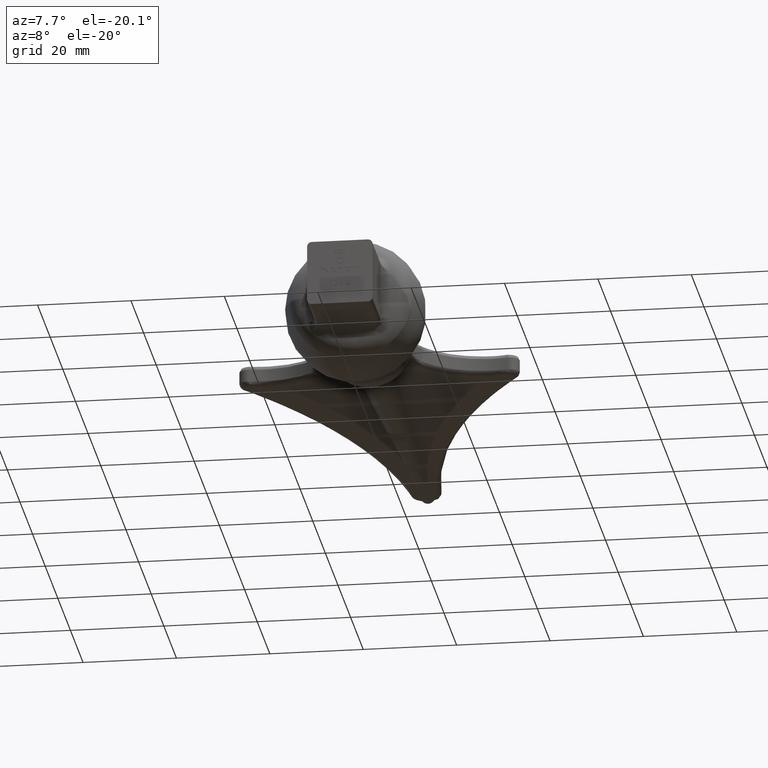
[diagram: clean part render]
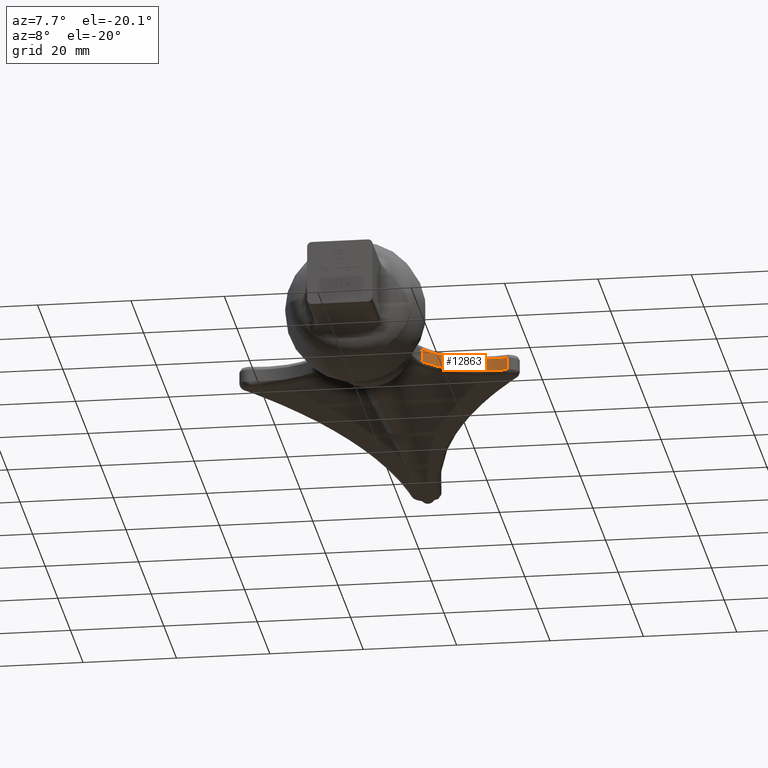
[diagram: same view with one face highlighted and labeled with its STEP entity id]
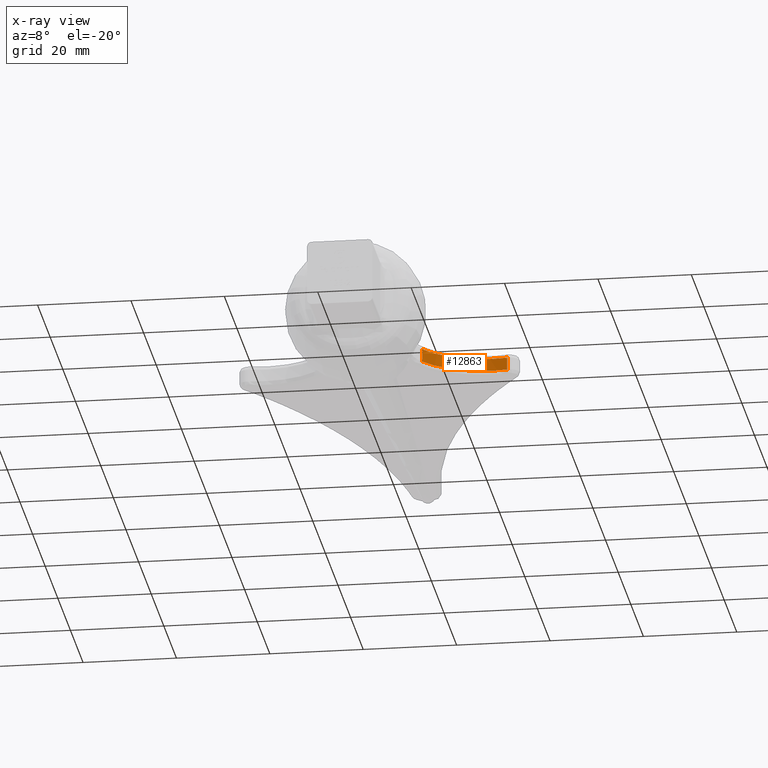
[diagram: x-ray of the same camera — body ghosted, the highlighted face saturated]
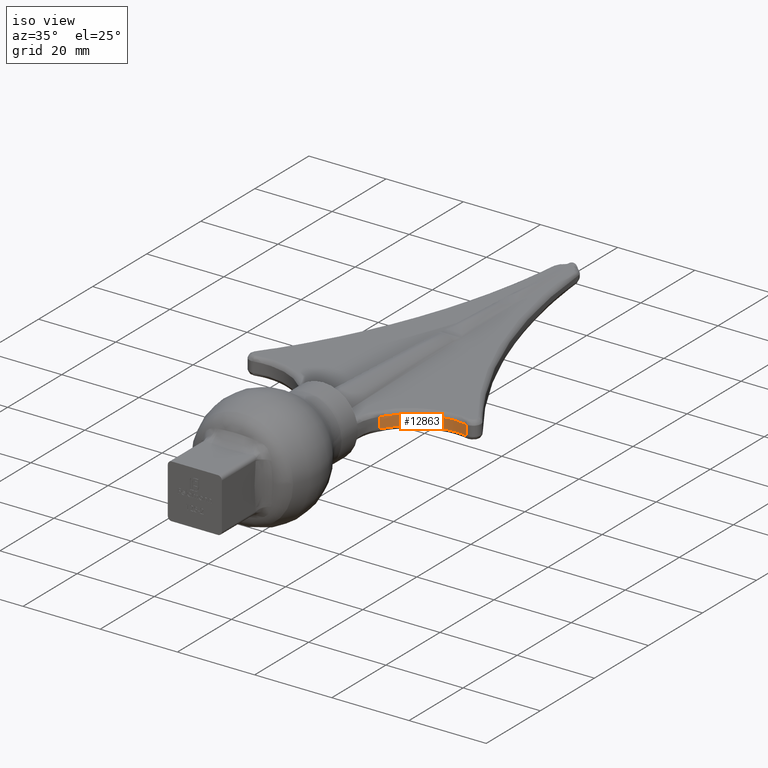
[diagram: same view with one face highlighted and labeled with its STEP entity id]
A machine part, auxiliary view. The second image highlights one B-rep face of the part: STEP entity #12863.
The next image is the same camera in x-ray: the body ghosted, the highlighted face saturated — about 0% of this face is hidden behind the body in this view.
A second angle (iso view) of the same face is appended — the face is thin or edge-on in the first view.
In plain terms, the highlighted cylindrical surface (partial cylindrical patch) has radius 16.3636 mm, axis along (0, 0, -1).
Its self-contained STEP definition (entity closure, byte-faithful):
#470 = ORIENTED_EDGE ( 'NONE', *, *, #9559, .T. ) ;
#489 = CARTESIAN_POINT ( 'NONE',  ( 10.46471792451112925, 8.636472734504080151, -0.2331750002486945306 ) ) ;
#614 = CARTESIAN_POINT ( 'NONE',  ( 10.45483533515793617, 8.620631210099075403, -0.4710905540037743644 ) ) ;
#692 =( BOUNDED_CURVE ( )  B_SPLINE_CURVE ( 3, ( #4893, #12305, #5926, #5876 ),
 .UNSPECIFIED., .F., .T. ) 
 B_SPLINE_CURVE_WITH_KNOTS ( ( 4, 4 ),
 ( 2.113038688172128587, 3.340929958572117275 ),
 .UNSPECIFIED. ) 
 CURVE ( )  GEOMETRIC_REPRESENTATION_ITEM ( )  RATIONAL_B_SPLINE_CURVE ( ( 1.000000000000000000, 0.8782542116984443092, 0.8782542116984443092, 1.000000000000000000 ) ) 
 REPRESENTATION_ITEM ( '' )  );
#2256 = LINE ( 'NONE', #5512, #4895 ) ;
#2458 = CARTESIAN_POINT ( 'NONE',  ( 10.34730395357091481, 8.444585295434649197, 1.405622038970311571 ) ) ;
#3186 = ORIENTED_EDGE ( 'NONE', *, *, #8981, .T. ) ;
#3743 = CARTESIAN_POINT ( 'NONE',  ( 10.46453520271322724, 8.636178668237070255, 0.2397109486182397720 ) ) ;
#3875 = CARTESIAN_POINT ( 'NONE',  ( 27.60396039603960716, 16.03960396039603964, 1.320788789554664833 ) ) ;
#4107 = DIRECTION ( 'NONE',  ( -1.000000000000000000, 0.000000000000000000, 0.000000000000000000 ) ) ;
#4361 =( BOUNDED_CURVE ( )  B_SPLINE_CURVE ( 3, ( #6174, #8284, #11456, #13581 ),
 .UNSPECIFIED., .F., .T. ) 
 B_SPLINE_CURVE_WITH_KNOTS ( ( 4, 4 ),
 ( 6.083848002197261629, 7.311739272597248096 ),
 .UNSPECIFIED. ) 
 CURVE ( )  GEOMETRIC_REPRESENTATION_ITEM ( )  RATIONAL_B_SPLINE_CURVE ( ( 1.000000000000000000, 0.8782542116984448644, 0.8782542116984448644, 1.000000000000000000 ) ) 
 REPRESENTATION_ITEM ( '' )  );
#4474 = CYLINDRICAL_SURFACE ( 'NONE', #5910, 16.36363636363635976 ) ;
#4893 = CARTESIAN_POINT ( 'NONE',  ( 10.34730395357089350, 8.444585295434613670, -1.405622038970467003 ) ) ;
#4895 = VECTOR ( 'NONE', #7571, 1000.000000000000000 ) ;
#4967 = EDGE_LOOP ( 'NONE', ( #3186, #13178, #5624, #470 ) ) ;
#5389 = CARTESIAN_POINT ( 'NONE',  ( 10.34730395357089350, 8.444585295434613670, -1.405622038970467003 ) ) ;
#5512 = CARTESIAN_POINT ( 'NONE',  ( 27.60396039603960716, 16.03960396039603964, 2.500000000000000000 ) ) ;
#5624 = ORIENTED_EDGE ( 'NONE', *, *, #8425, .F. ) ;
#5790 = CARTESIAN_POINT ( 'NONE',  ( 10.38529710184756283, 8.507646366750764244, -1.179065320751759183 ) ) ;
#5876 = CARTESIAN_POINT ( 'NONE',  ( 27.60396039603960716, 16.03960396039603964, -1.320788789554661946 ) ) ;
#5910 = AXIS2_PLACEMENT_3D ( 'NONE', #13547, #12576, #4107 ) ;
#5926 = CARTESIAN_POINT ( 'NONE',  ( 20.58976640842111649, 17.45661284678361724, -1.304961380355830869 ) ) ;
#5928 = CARTESIAN_POINT ( 'NONE',  ( 10.34730395357089350, 8.444585295434613670, -1.405622038970467003 ) ) ;
#6174 = CARTESIAN_POINT ( 'NONE',  ( 27.60396039603960716, 16.03960396039603964, 1.320788789554664833 ) ) ;
#6178 = VERTEX_POINT ( 'NONE', #3875 ) ;
#6791 = CARTESIAN_POINT ( 'NONE',  ( 10.38513390079777565, 8.507375485460157094, 1.180038503968389163 ) ) ;
#6841 = CARTESIAN_POINT ( 'NONE',  ( 10.45453976011242858, 8.620153670104294008, 0.4754787363232012565 ) ) ;
#6864 = B_SPLINE_CURVE_WITH_KNOTS ( 'NONE', 3,
 ( #6933, #6791, #7899, #6841, #3743, #489, #614, #7805, #5790, #5928 ),
 .UNSPECIFIED., .F., .F.,
 ( 4, 2, 2, 2, 4 ),
 ( 0.001108694961712762073, 0.001818766418568199504, 0.002528837875423636718, 0.003238909332279073933, 0.003948980789134510713 ),
 .UNSPECIFIED. ) ;
#6933 = CARTESIAN_POINT ( 'NONE',  ( 10.34730395357091481, 8.444585295434649197, 1.405622038970311571 ) ) ;
#7027 = VERTEX_POINT ( 'NONE', #9955 ) ;
#7571 = DIRECTION ( 'NONE',  ( 0.000000000000000000, 0.000000000000000000, -1.000000000000000000 ) ) ;
#7805 = CARTESIAN_POINT ( 'NONE',  ( 10.41509268799280008, 8.556176589984605840, -0.9448288040056814774 ) ) ;
#7899 = CARTESIAN_POINT ( 'NONE',  ( 10.41494997240574705, 8.555943289986872813, 0.9456554649975904558 ) ) ;
#7989 = VERTEX_POINT ( 'NONE', #5389 ) ;
#8284 = CARTESIAN_POINT ( 'NONE',  ( 20.58976640842114136, 17.45661284678361369, 1.304961380355832867 ) ) ;
#8425 = EDGE_CURVE ( 'NONE', #6178, #7027, #2256, .T. ) ;
#8981 = EDGE_CURVE ( 'NONE', #11835, #7989, #6864, .T. ) ;
#9559 = EDGE_CURVE ( 'NONE', #6178, #11835, #4361, .T. ) ;
#9955 = CARTESIAN_POINT ( 'NONE',  ( 27.60396039603960716, 16.03960396039603964, -1.320788789554661946 ) ) ;
#11456 = CARTESIAN_POINT ( 'NONE',  ( 14.04016068204256484, 14.57399315125776340, 1.337159062335097737 ) ) ;
#11835 = VERTEX_POINT ( 'NONE', #2458 ) ;
#12305 = CARTESIAN_POINT ( 'NONE',  ( 14.04016068204252932, 14.57399315125775274, -1.337159062335096404 ) ) ;
#12565 = EDGE_CURVE ( 'NONE', #7989, #7027, #692, .T. ) ;
#12576 = DIRECTION ( 'NONE',  ( 0.000000000000000000, 0.000000000000000000, -1.000000000000000000 ) ) ;
#12863 = ADVANCED_FACE ( 'NONE', ( #13266 ), #4474, .F. ) ;
#13178 = ORIENTED_EDGE ( 'NONE', *, *, #12565, .T. ) ;
#13266 = FACE_OUTER_BOUND ( 'NONE', #4967, .T. ) ;
#13547 = CARTESIAN_POINT ( 'NONE',  ( 24.36363636363636687, 2.641482619595750992E-15, 2.500000000000000000 ) ) ;
#13581 = CARTESIAN_POINT ( 'NONE',  ( 10.34730395357091481, 8.444585295434649197, 1.405622038970311571 ) ) ;